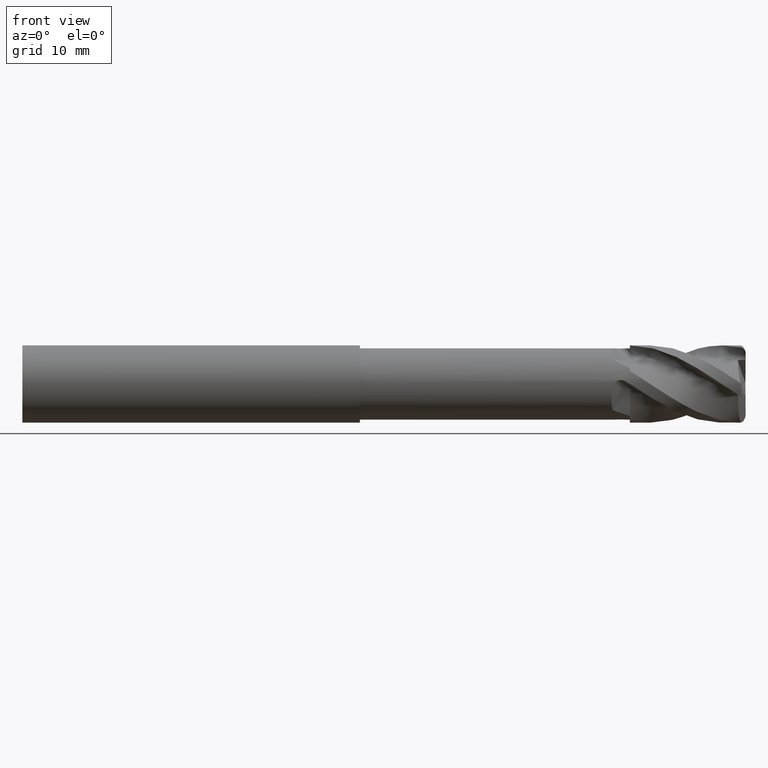
[diagram: clean part render]
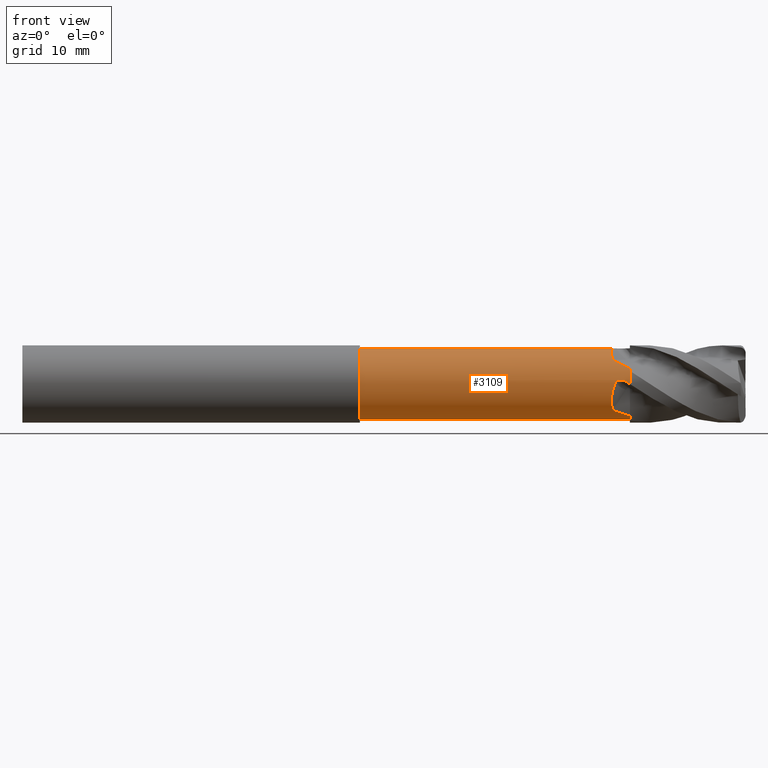
[diagram: same view with one face highlighted and labeled with its STEP entity id]
A machine part, front view. The second image highlights one B-rep face of the part: STEP entity #3109.
In plain terms, the highlighted cylindrical surface (edge-blend (fillet) strip) has radius 3.7 mm, axis along (-1, -0, -0).
Its self-contained STEP definition (entity closure, byte-faithful):
#279 = CARTESIAN_POINT ( 'NONE',  ( 26.40344870965864000, -1.953501767493887300, -3.163093870870406400 ) ) ;
#280 = CARTESIAN_POINT ( 'NONE',  ( 25.81576643487093400, -2.260304291443750600, -2.950731893214250300 ) ) ;
#281 = CARTESIAN_POINT ( 'NONE',  ( 25.20922698849330200, -2.519999999999951200, -2.717297123222178100 ) ) ;
#282 = CARTESIAN_POINT ( 'NONE',  ( -39.76065438357068200, 0.0000000000000000000, 3.700000000000014800 ) ) ;
#283 = DIRECTION ( 'NONE',  ( -1.000000000000000000, -0.0000000000000000000, -0.0000000000000000000 ) ) ;
#287 = CARTESIAN_POINT ( 'NONE',  ( 26.55996628855691500, -3.690268709489207000, 0.2681731749541181900 ) ) ;
#308 = CARTESIAN_POINT ( 'NONE',  ( 26.46978374214754800, -3.686281277336430000, 0.3230433017187407900 ) ) ;
#309 = CARTESIAN_POINT ( 'NONE',  ( 26.37364473975292300, -3.682245147491807600, 0.3628776794038864900 ) ) ;
#310 = CARTESIAN_POINT ( 'NONE',  ( 26.16915243940488600, -3.677074770696186600, 0.4119838190343067000 ) ) ;
#311 = CARTESIAN_POINT ( 'NONE',  ( 26.06450642367158100, -3.676080008403278800, 0.4202139896173822700 ) ) ;
#312 = CARTESIAN_POINT ( 'NONE',  ( 25.85646227966334400, -3.678728583689213000, 0.3963584650292723000 ) ) ;
#313 = CARTESIAN_POINT ( 'NONE',  ( 25.75275116088203500, -3.682617302000098700, 0.3629142229116237800 ) ) ;
#314 = CARTESIAN_POINT ( 'NONE',  ( 25.57769162514192700, -3.692197838942226500, 0.2470871188313632500 ) ) ;
#315 = CARTESIAN_POINT ( 'NONE',  ( 25.50742081325325100, -3.697628326406225500, 0.1644319628932655300 ) ) ;
#316 = CARTESIAN_POINT ( 'NONE',  ( 25.46471813796154700, -3.699393050599732600, 0.06701535029024755000 ) ) ;
#321 = CARTESIAN_POINT ( 'NONE',  ( -1.000000000000000900, 0.0000000000000000000, 0.0000000000000000000 ) ) ;
#322 = DIRECTION ( 'NONE',  ( -1.000000000000000000, -0.0000000000000000000, -0.0000000000000000000 ) ) ;
#323 = DIRECTION ( 'NONE',  ( 0.0000000000000000000, 0.0000000000000000000, 1.000000000000000000 ) ) ;
#332 = CARTESIAN_POINT ( 'NONE',  ( 26.99999999999999600, 0.0000000000000000000, 0.0000000000000000000 ) ) ;
#361 = DIRECTION ( 'NONE',  ( -1.000000000000000000, -0.0000000000000000000, -0.0000000000000000000 ) ) ;
#362 = DIRECTION ( 'NONE',  ( 0.0000000000000000000, 0.0000000000000000000, 1.000000000000000000 ) ) ;
#604 = CARTESIAN_POINT ( 'NONE',  ( 27.00000000000000400, 2.100806939003502800E-014, -3.703097500000016100 ) ) ;
#609 = CARTESIAN_POINT ( 'NONE',  ( 26.92666304994858400, -0.04470616497933711100, -3.700000000000032200 ) ) ;
#610 = CARTESIAN_POINT ( 'NONE',  ( 26.85333461257579700, -0.08943365034628279800, -3.699189426480262700 ) ) ;
#611 = CARTESIAN_POINT ( 'NONE',  ( 26.78001231970051800, -0.1341344474640834600, -3.697567842515350200 ) ) ;
#612 = CARTESIAN_POINT ( 'NONE',  ( 26.70666387504135000, -0.1788511879674512800, -3.695945680181816200 ) ) ;
#613 = CARTESIAN_POINT ( 'NONE',  ( 26.63331502169119600, -0.2235451785502677900, -3.693511842287815900 ) ) ;
#614 = CARTESIAN_POINT ( 'NONE',  ( 26.55996628855678000, -0.2681731749541880200, -3.690268709489195100 ) ) ;
#668 = CARTESIAN_POINT ( 'NONE',  ( 25.46471813796137700, -0.06701535029039328000, -3.699393050599728600 ) ) ;
#680 = CARTESIAN_POINT ( 'NONE',  ( 25.45494421427051500, -0.04471828901354264800, -3.699796966958838900 ) ) ;
#681 = CARTESIAN_POINT ( 'NONE',  ( 25.44537926060218800, -0.02237940412284132900, -3.700000000000004600 ) ) ;
#682 = CARTESIAN_POINT ( 'NONE',  ( 25.43601983507822700, -1.736553067142876400E-012, -3.700000000000015700 ) ) ;
#721 = CARTESIAN_POINT ( 'NONE',  ( 25.46471813796154700, -3.699393050599732600, 0.06701535029024755000 ) ) ;
#725 = CARTESIAN_POINT ( 'NONE',  ( 25.35786553042407100, -3.703808832588923100, -0.1767454169522243400 ) ) ;
#726 = CARTESIAN_POINT ( 'NONE',  ( 25.27574136361498000, -3.684403960825496100, -0.4254498334901492000 ) ) ;
#727 = CARTESIAN_POINT ( 'NONE',  ( 25.18493089446257500, -3.613906462566908400, -0.8038284062273983700 ) ) ;
#728 = CARTESIAN_POINT ( 'NONE',  ( 25.16001825143523300, -3.583149968616333500, -0.9317208311148114100 ) ) ;
#729 = CARTESIAN_POINT ( 'NONE',  ( 25.12176003811791200, -3.508513003253709500, -1.182118399623379500 ) ) ;
#730 = CARTESIAN_POINT ( 'NONE',  ( 25.10820219763386900, -3.464628864667494800, -1.305184017781087200 ) ) ;
#731 = CARTESIAN_POINT ( 'NONE',  ( 25.08258182262464700, -3.313169851963975200, -1.667794799329370900 ) ) ;
#732 = CARTESIAN_POINT ( 'NONE',  ( 25.08588533639135300, -3.183727309892716100, -1.903338666046773900 ) ) ;
#733 = CARTESIAN_POINT ( 'NONE',  ( 25.12643909359693600, -2.883334399907352200, -2.333495318130365700 ) ) ;
#734 = CARTESIAN_POINT ( 'NONE',  ( 25.16344879689394200, -2.711117259333272400, -2.531397248011252500 ) ) ;
#735 = CARTESIAN_POINT ( 'NONE',  ( 25.20922698849330200, -2.519999999999951200, -2.717297123222178100 ) ) ;
#805 = CARTESIAN_POINT ( 'NONE',  ( 25.43601983507822700, 1.735211366954425600E-012, 3.700000000000013900 ) ) ;
#813 = CARTESIAN_POINT ( 'NONE',  ( 25.33603855064427500, -0.2390661225039810700, 3.700000000000128500 ) ) ;
#814 = CARTESIAN_POINT ( 'NONE',  ( 25.25928409141476300, -0.4827070080637359500, 3.677016724081240800 ) ) ;
#815 = CARTESIAN_POINT ( 'NONE',  ( 25.17493160535023100, -0.8531496271291637600, 3.602499163765509500 ) ) ;
#816 = CARTESIAN_POINT ( 'NONE',  ( 25.15199599673573500, -0.9779233650741966400, 3.570707808421883300 ) ) ;
#817 = CARTESIAN_POINT ( 'NONE',  ( 25.11709600660922300, -1.221638579414039000, 3.494837269798166400 ) ) ;
#818 = CARTESIAN_POINT ( 'NONE',  ( 25.10489160940763400, -1.341455220402119300, 3.450638483773485800 ) ) ;
#819 = CARTESIAN_POINT ( 'NONE',  ( 25.08255118017203200, -1.694591703413008900, 3.299089446331232800 ) ) ;
#820 = CARTESIAN_POINT ( 'NONE',  ( 25.08701965041880300, -1.923800203240353200, 3.170904587197783000 ) ) ;
#821 = CARTESIAN_POINT ( 'NONE',  ( 25.12813936586130800, -2.342486591274810100, 2.875482514778568500 ) ) ;
#822 = CARTESIAN_POINT ( 'NONE',  ( 25.16461812758184600, -2.535462505715786500, 2.706746833679248600 ) ) ;
#823 = CARTESIAN_POINT ( 'NONE',  ( 25.20922698849330200, -2.717297123222168300, 2.519999999999960000 ) ) ;
#1853 = CARTESIAN_POINT ( 'NONE',  ( 27.00000000000000400, -3.703097500000016100, -3.393804744977677300E-014 ) ) ;
#1922 = CARTESIAN_POINT ( 'NONE',  ( 26.92666304994859400, -3.700000000000087200, 0.04470616497927373100 ) ) ;
#1926 = CARTESIAN_POINT ( 'NONE',  ( 26.70666387504141400, -3.695945680181820200, 0.1788511879674139800 ) ) ;
#1945 = CARTESIAN_POINT ( 'NONE',  ( 26.78001231970058200, -3.697567842515353800, 0.1341344474640454600 ) ) ;
#1953 = CARTESIAN_POINT ( 'NONE',  ( 26.85333461257584600, -3.699189426480265800, 0.08943365034625097600 ) ) ;
#1966 = CARTESIAN_POINT ( 'NONE',  ( 26.63331502169125300, -3.693511842287827000, 0.2235451785502207100 ) ) ;
#1968 = CARTESIAN_POINT ( 'NONE',  ( 26.55996628855691500, -3.690268709489207000, 0.2681731749541181900 ) ) ;
#2023 = DIRECTION ( 'NONE',  ( 0.0000000000000000000, 0.0000000000000000000, 1.000000000000000000 ) ) ;
#2028 = DIRECTION ( 'NONE',  ( -1.000000000000000000, -0.0000000000000000000, -0.0000000000000000000 ) ) ;
#2035 = CARTESIAN_POINT ( 'NONE',  ( 26.99999999999999600, 0.0000000000000000000, 0.0000000000000000000 ) ) ;
#2047 = CARTESIAN_POINT ( 'NONE',  ( 26.99999999999999600, -1.628073072614702400, -3.322555954416275300 ) ) ;
#2110 = EDGE_LOOP ( 'NONE', ( #4070, #3970, #3962, #4015, #4060, #4069, #4010, #4009, #4013, #4094, #4093, #4092, #3886, #4036 ) ) ;
#2215 = B_SPLINE_CURVE_WITH_KNOTS ( 'NONE', 3,
 ( #2047, #279, #280, #281 ),
 .UNSPECIFIED., .F., .F.,
 ( 4, 4 ),
 ( 0.0000000000000000000, 0.002087939045399662400 ),
 .UNSPECIFIED. ) ;
#2217 = B_SPLINE_CURVE_WITH_KNOTS ( 'NONE', 3,
 ( #287, #308, #309, #310, #311, #312, #313, #314, #315, #316 ),
 .UNSPECIFIED., .F., .F.,
 ( 4, 2, 2, 2, 4 ),
 ( 3.651444190207731500E-018, 0.0003123865255149002100, 0.0006247730510297968300, 0.0009371595765446934100, 0.001249546102059590000 ),
 .UNSPECIFIED. ) ;
#2233 = B_SPLINE_CURVE_WITH_KNOTS ( 'NONE', 3,
 ( #1853, #1922, #1953, #1945, #1926, #1966, #1968 ),
 .UNSPECIFIED., .F., .F.,
 ( 4, 3, 4 ),
 ( 0.0000000000000000000, 0.0002576675083709020700, 0.0005154269323145450500 ),
 .UNSPECIFIED. ) ;
#2241 = B_SPLINE_CURVE_WITH_KNOTS ( 'NONE', 3,
 ( #3482, #3474, #3472, #3471, #3470, #3469, #3468, #3467, #3466, #3465 ),
 .UNSPECIFIED., .F., .F.,
 ( 4, 2, 2, 2, 4 ),
 ( 3.733871393429805400E-016, 0.0003123865255152546300, 0.0006247730510301358600, 0.0009371595765450171500, 0.001249546102059898300 ),
 .UNSPECIFIED. ) ;
#2243 = B_SPLINE_CURVE_WITH_KNOTS ( 'NONE', 3,
 ( #3521, #3481, #3485, #3484 ),
 .UNSPECIFIED., .F., .F.,
 ( 4, 4 ),
 ( 0.0000000000000000000, 0.002087939045356754000 ),
 .UNSPECIFIED. ) ;
#2275 = AXIS2_PLACEMENT_3D ( 'NONE', #4763, #4762, #4448 ) ;
#2319 = EDGE_CURVE ( 'NONE', #3161, #3138, #2243, .T. ) ;
#2321 = EDGE_CURVE ( 'NONE', #3269, #3263, #3961, .T. ) ;
#2322 = EDGE_CURVE ( 'NONE', #3140, #3313, #2241, .T. ) ;
#2337 = EDGE_CURVE ( 'NONE', #3419, #3399, #2233, .T. ) ;
#2364 = AXIS2_PLACEMENT_3D ( 'NONE', #332, #361, #362 ) ;
#2369 = EDGE_CURVE ( 'NONE', #3419, #3161, #4067, .T. ) ;
#2372 = EDGE_CURVE ( 'NONE', #3312, #3431, #2215, .T. ) ;
#2373 = EDGE_CURVE ( 'NONE', #3195, #3249, #4006, .T. ) ;
#2377 = EDGE_CURVE ( 'NONE', #3399, #3248, #2217, .T. ) ;
#2381 = EDGE_CURVE ( 'NONE', #3263, #3249, #4193, .T. ) ;
#2387 = EDGE_CURVE ( 'NONE', #3146, #3312, #4194, .T. ) ;
#2390 = AXIS2_PLACEMENT_3D ( 'NONE', #321, #322, #323 ) ;
#2435 = AXIS2_PLACEMENT_3D ( 'NONE', #2035, #2028, #2023 ) ;
#2443 = EDGE_CURVE ( 'NONE', #3146, #3140, #2480, .T. ) ;
#2457 = EDGE_CURVE ( 'NONE', #3313, #3269, #2524, .T. ) ;
#2475 = EDGE_CURVE ( 'NONE', #3248, #3431, #2504, .T. ) ;
#2480 = B_SPLINE_CURVE_WITH_KNOTS ( 'NONE', 3,
 ( #604, #609, #610, #611, #612, #613, #614 ),
 .UNSPECIFIED., .F., .F.,
 ( 4, 3, 4 ),
 ( 0.0000000000000000000, 0.0002576675083709447300, 0.0005154269323145905800 ),
 .UNSPECIFIED. ) ;
#2504 = B_SPLINE_CURVE_WITH_KNOTS ( 'NONE', 3,
 ( #721, #725, #726, #727, #728, #729, #730, #731, #732, #733, #734, #735 ),
 .UNSPECIFIED., .F., .F.,
 ( 4, 2, 2, 2, 2, 4 ),
 ( 0.0000000000000000000, 0.0007873017131274246400, 0.001180952569691136100, 0.001574603426254847500, 0.002361905139382271400, 0.003149206852509696000 ),
 .UNSPECIFIED. ) ;
#2512 = EDGE_CURVE ( 'NONE', #3195, #3138, #2515, .T. ) ;
#2515 = B_SPLINE_CURVE_WITH_KNOTS ( 'NONE', 3,
 ( #805, #813, #814, #815, #816, #817, #818, #819, #820, #821, #822, #823 ),
 .UNSPECIFIED., .F., .F.,
 ( 4, 2, 2, 2, 2, 4 ),
 ( 7.201534003833679700E-005, 0.0008413132181562123900, 0.001225962157215149900, 0.001610611096274087500, 0.002379908974391962500, 0.003149206852509838200 ),
 .UNSPECIFIED. ) ;
#2524 = B_SPLINE_CURVE_WITH_KNOTS ( 'NONE', 3,
 ( #668, #680, #681, #682 ),
 .UNSPECIFIED., .F., .F.,
 ( 4, 4 ),
 ( 0.0000000000000000000, 7.201534003833545500E-005 ),
 .UNSPECIFIED. ) ;
#3109 = ADVANCED_FACE ( 'NONE', ( #4279 ), #4283, .T. ) ;
#3138 = VERTEX_POINT ( 'NONE', #4836 ) ;
#3140 = VERTEX_POINT ( 'NONE', #4838 ) ;
#3146 = VERTEX_POINT ( 'NONE', #4841 ) ;
#3161 = VERTEX_POINT ( 'NONE', #4846 ) ;
#3195 = VERTEX_POINT ( 'NONE', #4865 ) ;
#3248 = VERTEX_POINT ( 'NONE', #4875 ) ;
#3249 = VERTEX_POINT ( 'NONE', #4876 ) ;
#3263 = VERTEX_POINT ( 'NONE', #4832 ) ;
#3269 = VERTEX_POINT ( 'NONE', #4878 ) ;
#3312 = VERTEX_POINT ( 'NONE', #4891 ) ;
#3313 = VERTEX_POINT ( 'NONE', #4892 ) ;
#3399 = VERTEX_POINT ( 'NONE', #4922 ) ;
#3419 = VERTEX_POINT ( 'NONE', #4931 ) ;
#3431 = VERTEX_POINT ( 'NONE', #4933 ) ;
#3465 = CARTESIAN_POINT ( 'NONE',  ( 25.46471813796137700, -0.06701535029039328000, -3.699393050599728600 ) ) ;
#3466 = CARTESIAN_POINT ( 'NONE',  ( 25.50742081325309100, -0.1644319628934143900, -3.697628326406219300 ) ) ;
#3467 = CARTESIAN_POINT ( 'NONE',  ( 25.57769162514178500, -0.2470871188314982000, -3.692197838942219400 ) ) ;
#3468 = CARTESIAN_POINT ( 'NONE',  ( 25.75275116088194600, -0.3629142229117617900, -3.682617302000086300 ) ) ;
#3469 = CARTESIAN_POINT ( 'NONE',  ( 25.85646227966326200, -0.3963584650293849300, -3.678728583689200100 ) ) ;
#3470 = CARTESIAN_POINT ( 'NONE',  ( 26.06450642367147100, -0.4202139896174755800, -3.676080008403267200 ) ) ;
#3471 = CARTESIAN_POINT ( 'NONE',  ( 26.16915243940478700, -0.4119838190343961300, -3.677074770696177700 ) ) ;
#3472 = CARTESIAN_POINT ( 'NONE',  ( 26.37364473975281200, -0.3628776794039656500, -3.682245147491801900 ) ) ;
#3474 = CARTESIAN_POINT ( 'NONE',  ( 26.46978374214773700, -0.3230433017186030200, -3.686281277336280700 ) ) ;
#3476 = DIRECTION ( 'NONE',  ( -1.000000000000000000, -0.0000000000000000000, -0.0000000000000000000 ) ) ;
#3481 = CARTESIAN_POINT ( 'NONE',  ( 26.40344870968110100, -3.163093870822364400, 1.953501767573304200 ) ) ;
#3482 = CARTESIAN_POINT ( 'NONE',  ( 26.55996628855678000, -0.2681731749541880200, -3.690268709489195100 ) ) ;
#3484 = CARTESIAN_POINT ( 'NONE',  ( 25.20922698849330200, -2.717297123222168300, 2.519999999999960000 ) ) ;
#3485 = CARTESIAN_POINT ( 'NONE',  ( 25.81576643485496800, -2.950731893212450400, 2.260304291445690300 ) ) ;
#3486 = CARTESIAN_POINT ( 'NONE',  ( -39.76065438357068200, 4.531193156845224900E-016, -3.700000000000014800 ) ) ;
#3521 = CARTESIAN_POINT ( 'NONE',  ( 26.99999999999998900, -3.322555954379458100, 1.628073072689841600 ) ) ;
#3886 = ORIENTED_EDGE ( 'NONE', *, *, #2373, .T. ) ;
#3961 = LINE ( 'NONE', #3486, #4001 ) ;
#3962 = ORIENTED_EDGE ( 'NONE', *, *, #2322, .F. ) ;
#3970 = ORIENTED_EDGE ( 'NONE', *, *, #2457, .F. ) ;
#4001 = VECTOR ( 'NONE', #3476, 1000.000000000000000 ) ;
#4002 = VECTOR ( 'NONE', #283, 1000.000000000000000 ) ;
#4006 = LINE ( 'NONE', #282, #4002 ) ;
#4009 = ORIENTED_EDGE ( 'NONE', *, *, #2377, .F. ) ;
#4010 = ORIENTED_EDGE ( 'NONE', *, *, #2475, .F. ) ;
#4013 = ORIENTED_EDGE ( 'NONE', *, *, #2337, .F. ) ;
#4015 = ORIENTED_EDGE ( 'NONE', *, *, #2443, .F. ) ;
#4036 = ORIENTED_EDGE ( 'NONE', *, *, #2381, .F. ) ;
#4060 = ORIENTED_EDGE ( 'NONE', *, *, #2387, .T. ) ;
#4067 = CIRCLE ( 'NONE', #2435, 3.700000000000016600 ) ;
#4069 = ORIENTED_EDGE ( 'NONE', *, *, #2372, .T. ) ;
#4070 = ORIENTED_EDGE ( 'NONE', *, *, #2321, .F. ) ;
#4092 = ORIENTED_EDGE ( 'NONE', *, *, #2512, .F. ) ;
#4093 = ORIENTED_EDGE ( 'NONE', *, *, #2319, .T. ) ;
#4094 = ORIENTED_EDGE ( 'NONE', *, *, #2369, .T. ) ;
#4193 = CIRCLE ( 'NONE', #2390, 3.700000000000013100 ) ;
#4194 = CIRCLE ( 'NONE', #2364, 3.700000000000016600 ) ;
#4279 = FACE_OUTER_BOUND ( 'NONE', #2110, .T. ) ;
#4283 = CYLINDRICAL_SURFACE ( 'NONE', #2275, 3.700000000000014800 ) ;
#4448 = DIRECTION ( 'NONE',  ( 0.0000000000000000000, 0.0000000000000000000, 1.000000000000000000 ) ) ;
#4762 = DIRECTION ( 'NONE',  ( -1.000000000000000000, -0.0000000000000000000, -0.0000000000000000000 ) ) ;
#4763 = CARTESIAN_POINT ( 'NONE',  ( -39.76065438357068200, 0.0000000000000000000, 0.0000000000000000000 ) ) ;
#4832 = CARTESIAN_POINT ( 'NONE',  ( -1.000000000000000900, 4.531193156845224000E-016, -3.700000000000013100 ) ) ;
#4836 = CARTESIAN_POINT ( 'NONE',  ( 25.20922698849330200, -2.717297123222168300, 2.519999999999960000 ) ) ;
#4838 = CARTESIAN_POINT ( 'NONE',  ( 26.55996628855678000, -0.2681731749541880200, -3.690268709489195100 ) ) ;
#4841 = CARTESIAN_POINT ( 'NONE',  ( 27.00000000000000400, 2.100806939003502800E-014, -3.703097500000016100 ) ) ;
#4846 = CARTESIAN_POINT ( 'NONE',  ( 26.99999999999998900, -3.322555954379458100, 1.628073072689841600 ) ) ;
#4865 = CARTESIAN_POINT ( 'NONE',  ( 25.43601983507822700, 1.735211366954425600E-012, 3.700000000000013900 ) ) ;
#4875 = CARTESIAN_POINT ( 'NONE',  ( 25.46471813796154700, -3.699393050599732600, 0.06701535029024755000 ) ) ;
#4876 = CARTESIAN_POINT ( 'NONE',  ( -1.000000000000000900, 0.0000000000000000000, 3.700000000000013100 ) ) ;
#4878 = CARTESIAN_POINT ( 'NONE',  ( 25.43601983507822700, -1.736553067142876400E-012, -3.700000000000015700 ) ) ;
#4891 = CARTESIAN_POINT ( 'NONE',  ( 26.99999999999999600, -1.628073072614702400, -3.322555954416275300 ) ) ;
#4892 = CARTESIAN_POINT ( 'NONE',  ( 25.46471813796137700, -0.06701535029039328000, -3.699393050599728600 ) ) ;
#4922 = CARTESIAN_POINT ( 'NONE',  ( 26.55996628855691500, -3.690268709489207000, 0.2681731749541181900 ) ) ;
#4931 = CARTESIAN_POINT ( 'NONE',  ( 27.00000000000000400, -3.703097500000016100, -3.393804744977677300E-014 ) ) ;
#4933 = CARTESIAN_POINT ( 'NONE',  ( 25.20922698849330200, -2.519999999999951200, -2.717297123222178100 ) ) ;